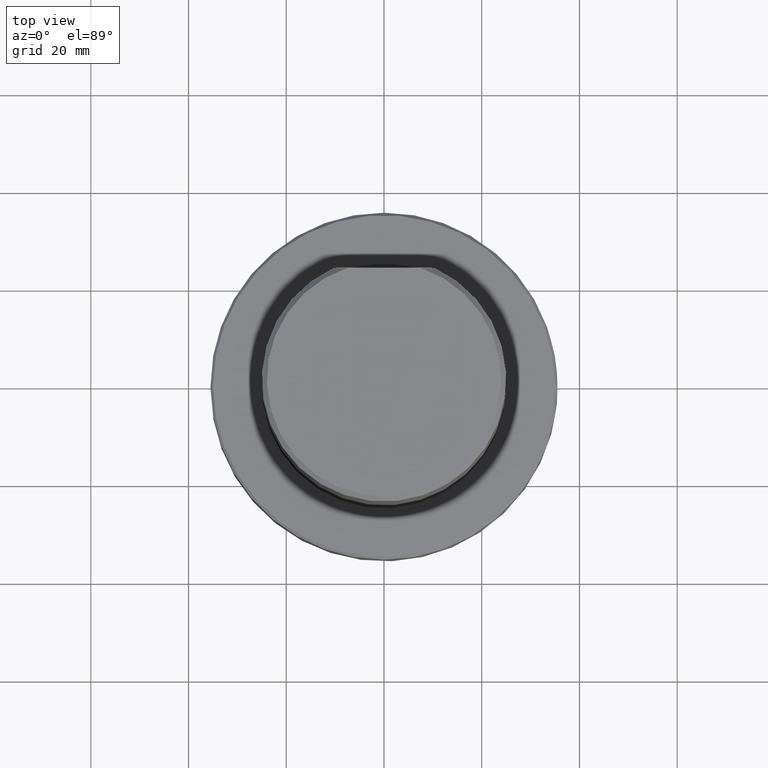
[diagram: clean part render]
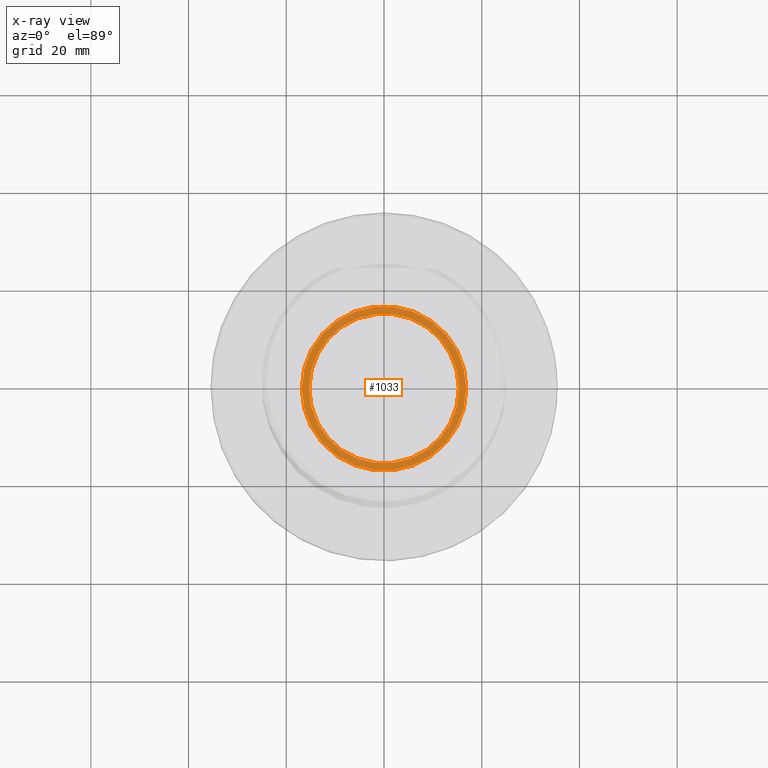
[diagram: x-ray — body ghosted, one internal face saturated and labeled with its STEP entity id]
A machine part, top view, then the same camera in x-ray: the body is ghosted and one INTERNAL B-rep face — a face not visible from any outside direction — is saturated and labeled: STEP entity #1033.
In plain terms, the highlighted planar face has unit normal (0, 0, -1).
Its self-contained STEP definition (entity closure, byte-faithful):
#476=ORIENTED_EDGE('',*,*,#618,.F.);
#477=ORIENTED_EDGE('',*,*,#623,.T.);
#618=EDGE_CURVE('',#716,#716,#777,.T.);
#623=EDGE_CURVE('',#721,#721,#782,.T.);
#716=VERTEX_POINT('',#1891);
#721=VERTEX_POINT('',#1906);
#777=CIRCLE('',#1162,15.3249999999999);
#782=CIRCLE('',#1172,16.8249999999999);
#861=EDGE_LOOP('',(#476));
#862=EDGE_LOOP('',(#477));
#941=FACE_BOUND('',#861,.T.);
#942=FACE_BOUND('',#862,.T.);
#968=PLANE('',#1173);
#1033=ADVANCED_FACE('',(#941,#942),#968,.F.);
#1162=AXIS2_PLACEMENT_3D('',#1890,#1448,#1449);
#1172=AXIS2_PLACEMENT_3D('',#1905,#1468,#1469);
#1173=AXIS2_PLACEMENT_3D('',#1907,#1470,#1471);
#1448=DIRECTION('',(0.,0.,1.));
#1449=DIRECTION('',(1.,0.,0.));
#1468=DIRECTION('',(0.,0.,1.));
#1469=DIRECTION('',(1.,0.,0.));
#1470=DIRECTION('',(0.,0.,-1.));
#1471=DIRECTION('',(-1.,0.,0.));
#1890=CARTESIAN_POINT('',(0.,0.,-29.5));
#1891=CARTESIAN_POINT('',(15.3249999999999,0.,-29.5));
#1905=CARTESIAN_POINT('',(0.,0.,-29.5));
#1906=CARTESIAN_POINT('',(16.8249999999999,0.,-29.5));
#1907=CARTESIAN_POINT('',(1.03020009515307E-15,16.8249999999999,-29.5));